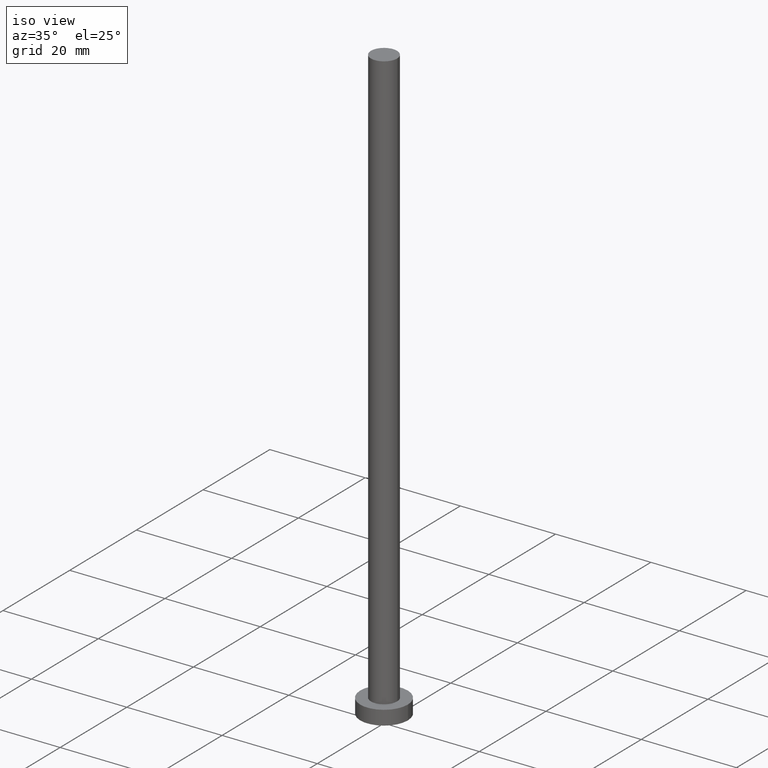
[diagram: clean part render]
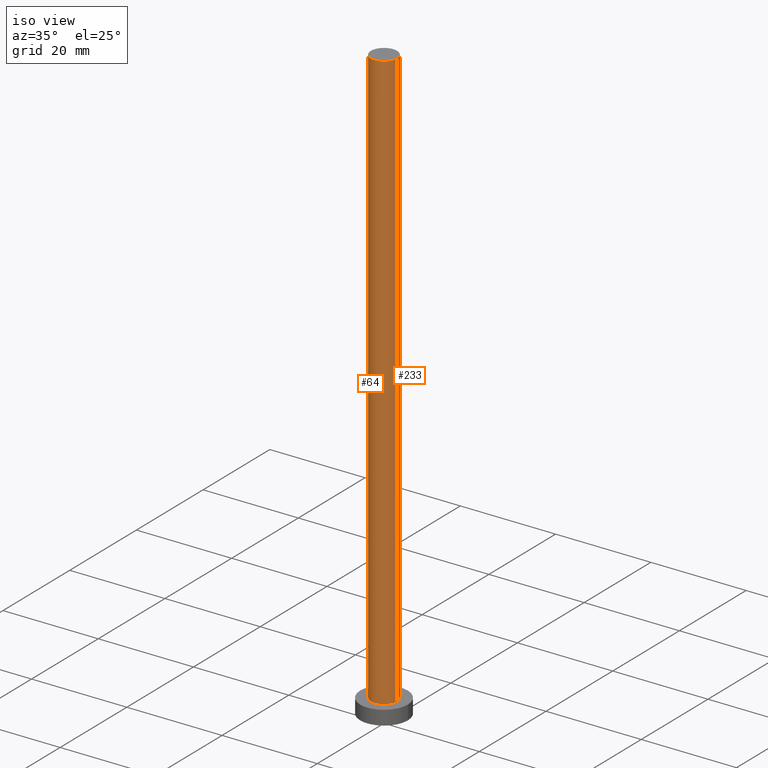
[diagram: same view with one multi-face feature highlighted, each face labeled with its STEP entity id]
A machine part, iso view. The highlighted faces form ONE feature: a constant-radius fillet chain: 2 tangent blend faces with common blend radius 2.75 mm. The faces share edges in the B-rep.
Their STEP definitions:
[1] entity #64 (Cylinder):
#5 = DIRECTION ( 'NONE',  ( -0.000000000000000000, -0.000000000000000000, -1.000000000000000000 ) ) ;
#6 = CYLINDRICAL_SURFACE ( 'NONE', #140, 2.750000000000000000 ) ;
#11 = EDGE_CURVE ( 'NONE', #101, #120, #83, .T. ) ;
#12 = ORIENTED_EDGE ( 'NONE', *, *, #11, .F. ) ;
#18 = DIRECTION ( 'NONE',  ( -0.000000000000000000, -0.000000000000000000, -1.000000000000000000 ) ) ;
#20 = DIRECTION ( 'NONE',  ( -1.000000000000000000, 0.000000000000000000, 0.000000000000000000 ) ) ;
#22 = VERTEX_POINT ( 'NONE', #250 ) ;
#25 = EDGE_CURVE ( 'NONE', #22, #101, #176, .T. ) ;
#51 = DIRECTION ( 'NONE',  ( -0.000000000000000000, -0.000000000000000000, -1.000000000000000000 ) ) ;
#52 = DIRECTION ( 'NONE',  ( 1.000000000000000000, 0.000000000000000000, 0.000000000000000000 ) ) ;
#59 = EDGE_LOOP ( 'NONE', ( #12, #204, #117, #216 ) ) ;
#64 = ADVANCED_FACE ( 'NONE', ( #76 ), #6, .T. ) ;
#67 = CARTESIAN_POINT ( 'NONE',  ( 0.000000000000000000, 0.000000000000000000, 125.0000000000000000 ) ) ;
#69 = AXIS2_PLACEMENT_3D ( 'NONE', #243, #226, #52 ) ;
#70 = CARTESIAN_POINT ( 'NONE',  ( 2.750000000000000000, 3.367778697655220519E-16, 3.000000000000000000 ) ) ;
#76 = FACE_OUTER_BOUND ( 'NONE', #59, .T. ) ;
#83 = LINE ( 'NONE', #235, #159 ) ;
#91 = VECTOR ( 'NONE', #5, 1000.000000000000000 ) ;
#101 = VERTEX_POINT ( 'NONE', #207 ) ;
#109 = EDGE_CURVE ( 'NONE', #138, #120, #173, .T. ) ;
#112 = LINE ( 'NONE', #221, #91 ) ;
#117 = ORIENTED_EDGE ( 'NONE', *, *, #171, .T. ) ;
#120 = VERTEX_POINT ( 'NONE', #70 ) ;
#135 = DIRECTION ( 'NONE',  ( 1.000000000000000000, 0.000000000000000000, 0.000000000000000000 ) ) ;
#138 = VERTEX_POINT ( 'NONE', #165 ) ;
#140 = AXIS2_PLACEMENT_3D ( 'NONE', #242, #51, #20 ) ;
#159 = VECTOR ( 'NONE', #18, 1000.000000000000000 ) ;
#165 = CARTESIAN_POINT ( 'NONE',  ( -2.750000000000000000, 0.000000000000000000, 3.000000000000000000 ) ) ;
#171 = EDGE_CURVE ( 'NONE', #22, #138, #112, .T. ) ;
#173 = CIRCLE ( 'NONE', #69, 2.750000000000000000 ) ;
#176 = CIRCLE ( 'NONE', #190, 2.750000000000000000 ) ;
#190 = AXIS2_PLACEMENT_3D ( 'NONE', #67, #234, #135 ) ;
#204 = ORIENTED_EDGE ( 'NONE', *, *, #25, .F. ) ;
#207 = CARTESIAN_POINT ( 'NONE',  ( 2.750000000000000000, 3.367778697655220519E-16, 125.0000000000000000 ) ) ;
#216 = ORIENTED_EDGE ( 'NONE', *, *, #109, .T. ) ;
#221 = CARTESIAN_POINT ( 'NONE',  ( -2.750000000000000000, 0.000000000000000000, 125.0000000000000000 ) ) ;
#226 = DIRECTION ( 'NONE',  ( 0.000000000000000000, 0.000000000000000000, 1.000000000000000000 ) ) ;
#234 = DIRECTION ( 'NONE',  ( 0.000000000000000000, 0.000000000000000000, 1.000000000000000000 ) ) ;
#235 = CARTESIAN_POINT ( 'NONE',  ( 2.750000000000000000, 3.367778697655220519E-16, 125.0000000000000000 ) ) ;
#242 = CARTESIAN_POINT ( 'NONE',  ( 0.000000000000000000, 0.000000000000000000, 125.0000000000000000 ) ) ;
#243 = CARTESIAN_POINT ( 'NONE',  ( 0.000000000000000000, 0.000000000000000000, 3.000000000000000000 ) ) ;
#250 = CARTESIAN_POINT ( 'NONE',  ( -2.750000000000000000, 0.000000000000000000, 125.0000000000000000 ) ) ;
[2] entity #233 (Cylinder):
#5 = DIRECTION ( 'NONE',  ( -0.000000000000000000, -0.000000000000000000, -1.000000000000000000 ) ) ;
#11 = EDGE_CURVE ( 'NONE', #101, #120, #83, .T. ) ;
#18 = DIRECTION ( 'NONE',  ( -0.000000000000000000, -0.000000000000000000, -1.000000000000000000 ) ) ;
#22 = VERTEX_POINT ( 'NONE', #250 ) ;
#32 = EDGE_CURVE ( 'NONE', #120, #138, #77, .T. ) ;
#40 = CARTESIAN_POINT ( 'NONE',  ( 0.000000000000000000, 0.000000000000000000, 3.000000000000000000 ) ) ;
#41 = EDGE_LOOP ( 'NONE', ( #100, #107, #232, #99 ) ) ;
#43 = EDGE_CURVE ( 'NONE', #101, #22, #97, .T. ) ;
#54 = CARTESIAN_POINT ( 'NONE',  ( 0.000000000000000000, 0.000000000000000000, 125.0000000000000000 ) ) ;
#70 = CARTESIAN_POINT ( 'NONE',  ( 2.750000000000000000, 3.367778697655220519E-16, 3.000000000000000000 ) ) ;
#72 = DIRECTION ( 'NONE',  ( -0.000000000000000000, -0.000000000000000000, -1.000000000000000000 ) ) ;
#77 = CIRCLE ( 'NONE', #244, 2.750000000000000000 ) ;
#83 = LINE ( 'NONE', #235, #159 ) ;
#89 = CYLINDRICAL_SURFACE ( 'NONE', #229, 2.750000000000000000 ) ;
#91 = VECTOR ( 'NONE', #5, 1000.000000000000000 ) ;
#97 = CIRCLE ( 'NONE', #125, 2.750000000000000000 ) ;
#99 = ORIENTED_EDGE ( 'NONE', *, *, #171, .F. ) ;
#100 = ORIENTED_EDGE ( 'NONE', *, *, #43, .F. ) ;
#101 = VERTEX_POINT ( 'NONE', #207 ) ;
#106 = DIRECTION ( 'NONE',  ( 0.000000000000000000, 0.000000000000000000, 1.000000000000000000 ) ) ;
#107 = ORIENTED_EDGE ( 'NONE', *, *, #11, .T. ) ;
#112 = LINE ( 'NONE', #221, #91 ) ;
#120 = VERTEX_POINT ( 'NONE', #70 ) ;
#125 = AXIS2_PLACEMENT_3D ( 'NONE', #54, #223, #185 ) ;
#138 = VERTEX_POINT ( 'NONE', #165 ) ;
#142 = CARTESIAN_POINT ( 'NONE',  ( 0.000000000000000000, 0.000000000000000000, 125.0000000000000000 ) ) ;
#159 = VECTOR ( 'NONE', #18, 1000.000000000000000 ) ;
#165 = CARTESIAN_POINT ( 'NONE',  ( -2.750000000000000000, 0.000000000000000000, 3.000000000000000000 ) ) ;
#171 = EDGE_CURVE ( 'NONE', #22, #138, #112, .T. ) ;
#185 = DIRECTION ( 'NONE',  ( 1.000000000000000000, 0.000000000000000000, 0.000000000000000000 ) ) ;
#207 = CARTESIAN_POINT ( 'NONE',  ( 2.750000000000000000, 3.367778697655220519E-16, 125.0000000000000000 ) ) ;
#221 = CARTESIAN_POINT ( 'NONE',  ( -2.750000000000000000, 0.000000000000000000, 125.0000000000000000 ) ) ;
#222 = DIRECTION ( 'NONE',  ( -1.000000000000000000, 0.000000000000000000, 0.000000000000000000 ) ) ;
#223 = DIRECTION ( 'NONE',  ( 0.000000000000000000, 0.000000000000000000, 1.000000000000000000 ) ) ;
#229 = AXIS2_PLACEMENT_3D ( 'NONE', #142, #72, #222 ) ;
#232 = ORIENTED_EDGE ( 'NONE', *, *, #32, .T. ) ;
#233 = ADVANCED_FACE ( 'NONE', ( #241 ), #89, .T. ) ;
#235 = CARTESIAN_POINT ( 'NONE',  ( 2.750000000000000000, 3.367778697655220519E-16, 125.0000000000000000 ) ) ;
#241 = FACE_OUTER_BOUND ( 'NONE', #41, .T. ) ;
#244 = AXIS2_PLACEMENT_3D ( 'NONE', #40, #106, #254 ) ;
#250 = CARTESIAN_POINT ( 'NONE',  ( -2.750000000000000000, 0.000000000000000000, 125.0000000000000000 ) ) ;
#254 = DIRECTION ( 'NONE',  ( 1.000000000000000000, 0.000000000000000000, 0.000000000000000000 ) ) ;